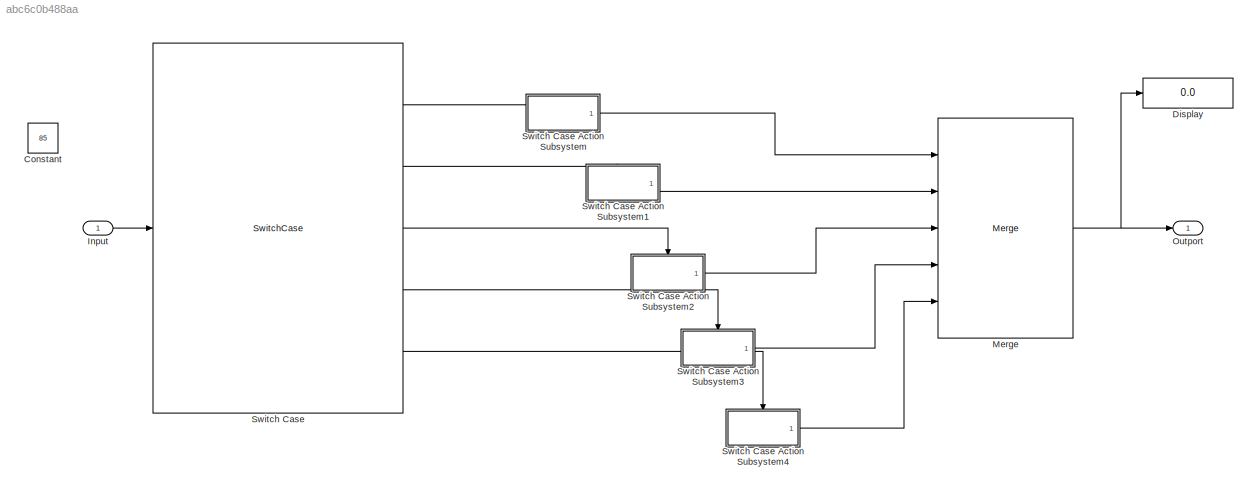
MODEL slx_abc6c0b488aa
KIND model
CONFIG AbsTol = auto
CONFIG EnableMultiTasking = off
CONFIG FixedStep = auto
CONFIG MaxStep = auto
CONFIG MinStep = auto
CONFIG RelTol = 1e-3
CONFIG SampleTimeConstraint = Unconstrained
CONFIG Solver = VariableStepAuto
CONFIG SolverName = VariableStepAuto
CONFIG StartTime = 0.0
CONFIG StopTime = 10.0
BLOCK [Constant] Constant
  Value = 85
BLOCK [Display] Display
  Decimation = 1
  Ports = [1]
BLOCK [Inport] Input
  IconDisplay = Port number
  OutDataTypeStr = uint32
BLOCK [Merge] Merge
  Inputs = 5
  Ports = [5, 1]
BLOCK [Outport] Outport
  IconDisplay = Port number
BLOCK [SwitchCase] Switch Case
  CaseConditions = {85:100,75:84,65:74,55:64}
  Ports = [1, 5]
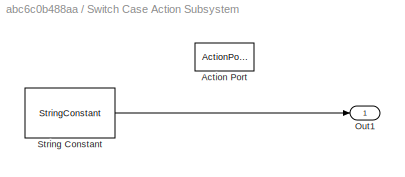
BLOCK [SubSystem] Switch Case Action Subsystem
  Ports = [0, 1, 0, 0, 0, 0, 0, 1]
  RequestExecContextInheritance = off
  TreatAsAtomicUnit = on
BLOCK [ActionPort] Switch Case Action Subsystem/Action Port
  ActionType = case
BLOCK [Outport] Switch Case Action Subsystem/Out1
  IconDisplay = Port number
BLOCK [StringConstant] Switch Case Action Subsystem/String Constant
  String = "A"
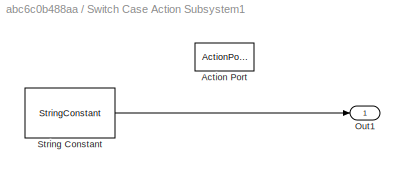
BLOCK [SubSystem] Switch Case Action Subsystem1
  Ports = [0, 1, 0, 0, 0, 0, 0, 1]
  RequestExecContextInheritance = off
  TreatAsAtomicUnit = on
BLOCK [ActionPort] Switch Case Action Subsystem1/Action Port
  ActionType = case
BLOCK [Outport] Switch Case Action Subsystem1/Out1
  IconDisplay = Port number
BLOCK [StringConstant] Switch Case Action Subsystem1/String Constant
  String = "B"
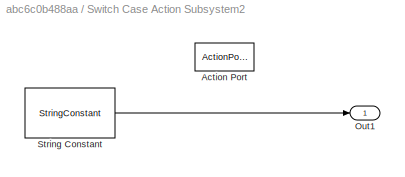
BLOCK [SubSystem] Switch Case Action Subsystem2
  Ports = [0, 1, 0, 0, 0, 0, 0, 1]
  RequestExecContextInheritance = off
  TreatAsAtomicUnit = on
BLOCK [ActionPort] Switch Case Action Subsystem2/Action Port
  ActionType = case
BLOCK [Outport] Switch Case Action Subsystem2/Out1
  IconDisplay = Port number
BLOCK [StringConstant] Switch Case Action Subsystem2/String Constant
  String = "C"
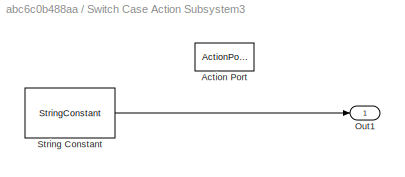
BLOCK [SubSystem] Switch Case Action Subsystem3
  Ports = [0, 1, 0, 0, 0, 0, 0, 1]
  RequestExecContextInheritance = off
  TreatAsAtomicUnit = on
BLOCK [ActionPort] Switch Case Action Subsystem3/Action Port
  ActionType = case
BLOCK [Outport] Switch Case Action Subsystem3/Out1
  IconDisplay = Port number
BLOCK [StringConstant] Switch Case Action Subsystem3/String Constant
  String = "D"
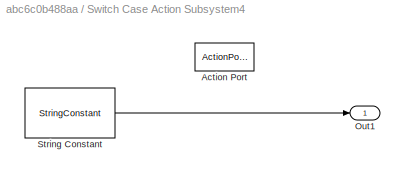
BLOCK [SubSystem] Switch Case Action Subsystem4
  Ports = [0, 1, 0, 0, 0, 0, 0, 1]
  RequestExecContextInheritance = off
  TreatAsAtomicUnit = on
BLOCK [ActionPort] Switch Case Action Subsystem4/Action Port
  ActionType = default
BLOCK [Outport] Switch Case Action Subsystem4/Out1
  IconDisplay = Port number
BLOCK [StringConstant] Switch Case Action Subsystem4/String Constant
  String = "F"
LINE Input:1 -> Switch Case:1
NET Merge:1 -> Display:1, Outport:1
LINE Switch Case Action Subsystem/String Constant:1 -> Switch Case Action Subsystem/Out1:1
LINE Switch Case Action Subsystem1/String Constant:1 -> Switch Case Action Subsystem1/Out1:1
LINE Switch Case Action Subsystem1:1 -> Merge:2
LINE Switch Case Action Subsystem2/String Constant:1 -> Switch Case Action Subsystem2/Out1:1
LINE Switch Case Action Subsystem2:1 -> Merge:3
LINE Switch Case Action Subsystem3/String Constant:1 -> Switch Case Action Subsystem3/Out1:1
LINE Switch Case Action Subsystem3:1 -> Merge:4
LINE Switch Case Action Subsystem4/String Constant:1 -> Switch Case Action Subsystem4/Out1:1
LINE Switch Case Action Subsystem4:1 -> Merge:5
LINE Switch Case Action Subsystem:1 -> Merge:1
LINE Switch Case:1 -> Switch Case Action Subsystem:ifaction
LINE Switch Case:2 -> Switch Case Action Subsystem1:ifaction
LINE Switch Case:3 -> Switch Case Action Subsystem2:ifaction
LINE Switch Case:4 -> Switch Case Action Subsystem3:ifaction
LINE Switch Case:5 -> Switch Case Action Subsystem4:ifaction
note: NET lines group one-source signal fan-out (src -> all destinations, sorted); 1:1 wires keep LINE
